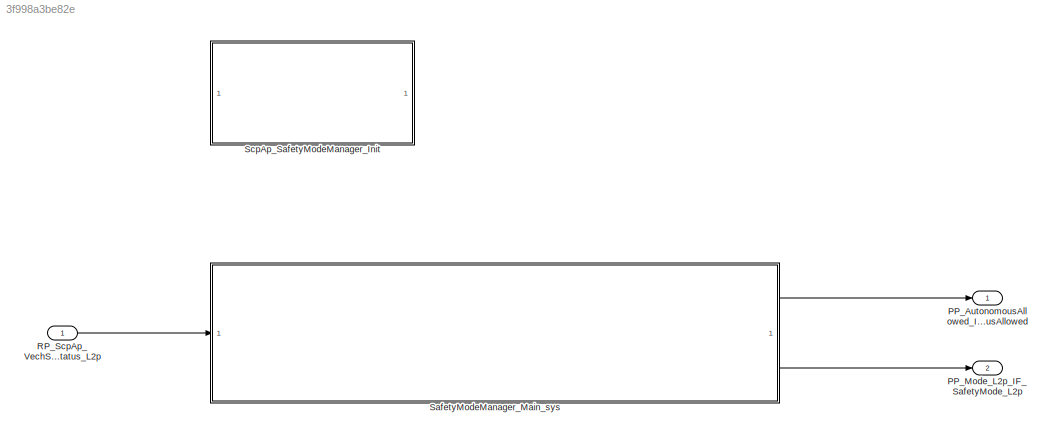
MODEL slx_3f998a3be82e
KIND model
CONFIG AbsTol = auto
CONFIG EnableMultiTasking = off
CONFIG FixedStep = 0.02
CONFIG MaxStep = auto
CONFIG MinStep = auto
CONFIG RelTol = 1e-3
CONFIG SampleTimeConstraint = Unconstrained
CONFIG SolverName = FixedStepDiscrete
CONFIG StartTime = 0.0
CONFIG StopTime = 10.0
BLOCK [Outport] PP_AutonomousAllowed_IF_AutonomousAllowed
  OutDataTypeStr = boolean
  PortDimensions = 1
  SamplingMode = Sample based
  SignalType = real
BLOCK [Outport] PP_Mode_L2p_IF_SafetyMode_L2p
  OutDataTypeStr = Enum: SafetyMode_L2p_IDT
  Port = 2
  PortDimensions = 1
  SamplingMode = Sample based
  SignalType = real
BLOCK [Inport] RP_ScpAp_VechSafetyStatus_L2p_IF_VechSafetyStatus_L2p
  OutDataTypeStr = Enum: VechSafetyStatus_L2p_IDT
  PortDimensions = 1
  SamplingMode = Sample based
  SignalType = real
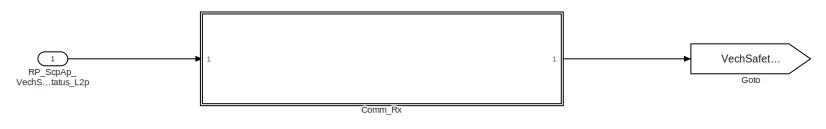
[diagram: SafetyModeManager_Main_sys - part 1/3, middle left region]
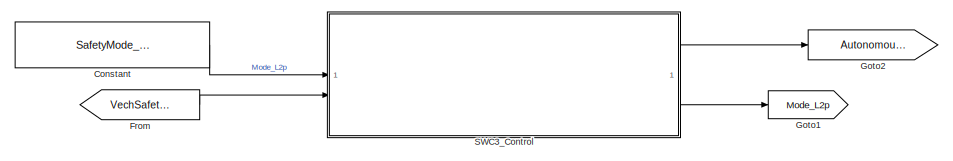
[diagram: SafetyModeManager_Main_sys - part 2/3, center side, full height]
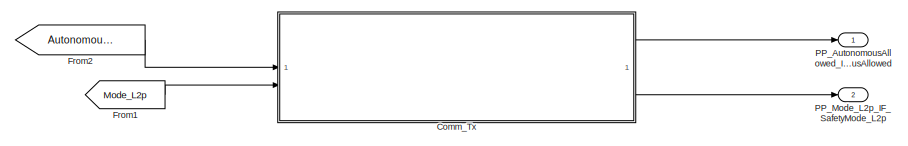
[diagram: SafetyModeManager_Main_sys - part 3/3, middle right region]
BLOCK [SubSystem] SafetyModeManager_Main_sys
  SystemSampleTime = 0.02
  TreatAsAtomicUnit = on
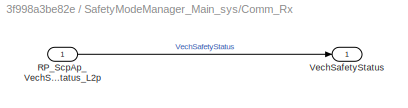
BLOCK [SubSystem] SafetyModeManager_Main_sys/Comm_Rx
  TreatAsAtomicUnit = on
BLOCK [Inport] SafetyModeManager_Main_sys/Comm_Rx/RP_ScpAp_VechSafetyStatus_L2p_IF_VechSafetyStatus_L2p
  OutDataTypeStr = Enum: VechSafetyStatus_L2p_IDT
BLOCK [Outport] SafetyModeManager_Main_sys/Comm_Rx/VechSafetyStatus
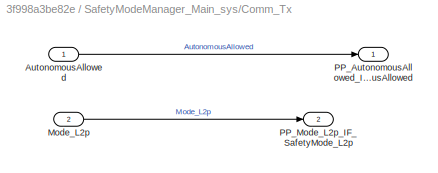
BLOCK [SubSystem] SafetyModeManager_Main_sys/Comm_Tx
  TreatAsAtomicUnit = on
BLOCK [Inport] SafetyModeManager_Main_sys/Comm_Tx/AutonomousAllowed
  OutDataTypeStr = boolean
BLOCK [Inport] SafetyModeManager_Main_sys/Comm_Tx/Mode_L2p
  Port = 2
BLOCK [Outport] SafetyModeManager_Main_sys/Comm_Tx/PP_AutonomousAllowed_IF_AutonomousAllowed
  OutDataTypeStr = boolean
BLOCK [Outport] SafetyModeManager_Main_sys/Comm_Tx/PP_Mode_L2p_IF_SafetyMode_L2p
  Port = 2
BLOCK [Constant] SafetyModeManager_Main_sys/Constant
  Value = SafetyMode_L2p_IDT.AUTONOMOUS
BLOCK [From] SafetyModeManager_Main_sys/From
  GotoTag = VechSafetyStatus
BLOCK [From] SafetyModeManager_Main_sys/From1
  GotoTag = Mode_L2p
BLOCK [From] SafetyModeManager_Main_sys/From2
  GotoTag = AutonomousAllowed
BLOCK [Goto] SafetyModeManager_Main_sys/Goto
  GotoTag = VechSafetyStatus
BLOCK [Goto] SafetyModeManager_Main_sys/Goto1
  GotoTag = Mode_L2p
BLOCK [Goto] SafetyModeManager_Main_sys/Goto2
  GotoTag = AutonomousAllowed
BLOCK [Outport] SafetyModeManager_Main_sys/PP_AutonomousAllowed_IF_AutonomousAllowed
BLOCK [Outport] SafetyModeManager_Main_sys/PP_Mode_L2p_IF_SafetyMode_L2p
  Port = 2
BLOCK [Inport] SafetyModeManager_Main_sys/RP_ScpAp_VechSafetyStatus_L2p_IF_VechSafetyStatus_L2p
  OutDataTypeStr = Enum: VechSafetyStatus_L2p_IDT
  PortDimensions = 1
  SamplingMode = Sample based
  SignalType = real
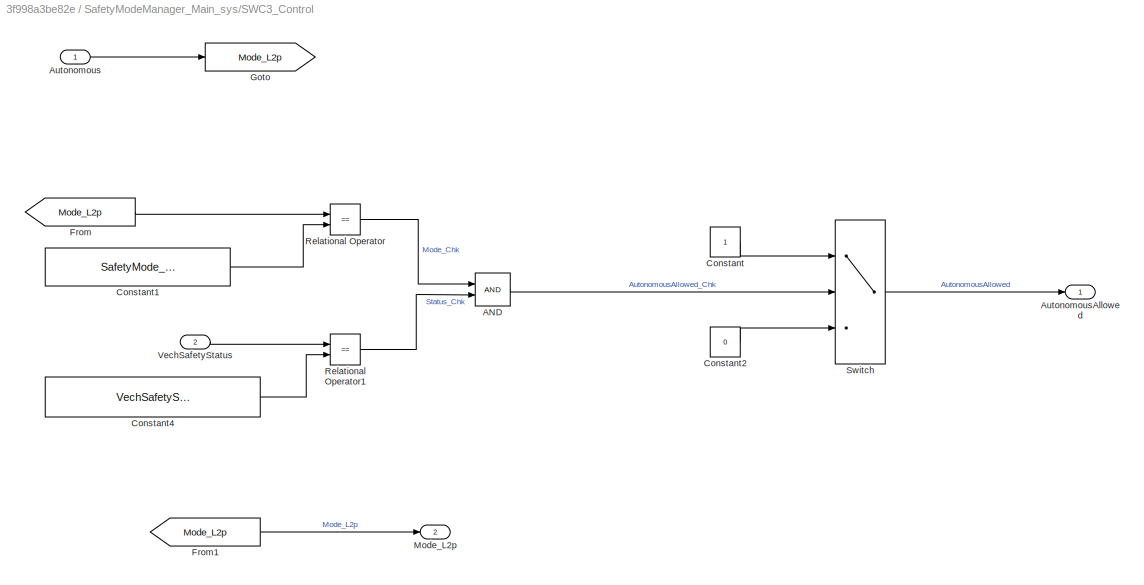
BLOCK [SubSystem] SafetyModeManager_Main_sys/SWC3_Control
  TreatAsAtomicUnit = on
BLOCK [Logic] SafetyModeManager_Main_sys/SWC3_Control/AND
  AllPortsSameDT = off
  OutDataTypeStr = boolean
BLOCK [Inport] SafetyModeManager_Main_sys/SWC3_Control/Autonomous
BLOCK [Outport] SafetyModeManager_Main_sys/SWC3_Control/AutonomousAllowed
  OutDataTypeStr = boolean
BLOCK [Constant] SafetyModeManager_Main_sys/SWC3_Control/Constant
  OutDataTypeStr = boolean
BLOCK [Constant] SafetyModeManager_Main_sys/SWC3_Control/Constant1
  OutDataTypeStr = Enum: SafetyMode_L2p_IDT
  Value = SafetyMode_L2p_IDT.AUTONOMOUS
BLOCK [Constant] SafetyModeManager_Main_sys/SWC3_Control/Constant2
  OutDataTypeStr = boolean
  Value = 0
BLOCK [Constant] SafetyModeManager_Main_sys/SWC3_Control/Constant4
  OutDataTypeStr = Enum: VechSafetyStatus_L2p_IDT
  Value = VechSafetyStatus_L2p_IDT.NORMAL
BLOCK [From] SafetyModeManager_Main_sys/SWC3_Control/From
  GotoTag = Mode_L2p
BLOCK [From] SafetyModeManager_Main_sys/SWC3_Control/From1
  GotoTag = Mode_L2p
BLOCK [Goto] SafetyModeManager_Main_sys/SWC3_Control/Goto
  GotoTag = Mode_L2p
BLOCK [Outport] SafetyModeManager_Main_sys/SWC3_Control/Mode_L2p
  Port = 2
BLOCK [RelationalOperator] SafetyModeManager_Main_sys/SWC3_Control/Relational Operator
  InputSameDT = off
  Operator = ==
  OutDataTypeStr = boolean
  RndMeth = Simplest
BLOCK [RelationalOperator] SafetyModeManager_Main_sys/SWC3_Control/Relational Operator1
  InputSameDT = off
  Operator = ==
  OutDataTypeStr = boolean
  RndMeth = Simplest
BLOCK [Switch] SafetyModeManager_Main_sys/SWC3_Control/Switch
  Criteria = u2 > Threshold
  InputSameDT = off
  SaturateOnIntegerOverflow = off
BLOCK [Inport] SafetyModeManager_Main_sys/SWC3_Control/VechSafetyStatus
  OutDataTypeStr = Enum: VechSafetyStatus_L2p_IDT
  Port = 2
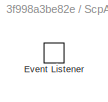
BLOCK [SubSystem] ScpAp_SafetyModeManager_Init
BLOCK [EventListener] ScpAp_SafetyModeManager_Init/Event Listener
  EventName = reset
LINE RP_ScpAp_VechSafetyStatus_L2p_IF_VechSafetyStatus_L2p:1 -> SafetyModeManager_Main_sys:1
LINE SafetyModeManager_Main_sys/Comm_Rx/RP_ScpAp_VechSafetyStatus_L2p_IF_VechSafetyStatus_L2p:1 -> SafetyModeManager_Main_sys/Comm_Rx/VechSafetyStatus:1
LINE SafetyModeManager_Main_sys/Comm_Rx:1 -> SafetyModeManager_Main_sys/Goto:1
LINE SafetyModeManager_Main_sys/Comm_Tx/AutonomousAllowed:1 -> SafetyModeManager_Main_sys/Comm_Tx/PP_AutonomousAllowed_IF_AutonomousAllowed:1
LINE SafetyModeManager_Main_sys/Comm_Tx/Mode_L2p:1 -> SafetyModeManager_Main_sys/Comm_Tx/PP_Mode_L2p_IF_SafetyMode_L2p:1
LINE SafetyModeManager_Main_sys/Comm_Tx:1 -> SafetyModeManager_Main_sys/PP_AutonomousAllowed_IF_AutonomousAllowed:1
LINE SafetyModeManager_Main_sys/Comm_Tx:2 -> SafetyModeManager_Main_sys/PP_Mode_L2p_IF_SafetyMode_L2p:1
LINE SafetyModeManager_Main_sys/Constant:1 -> SafetyModeManager_Main_sys/SWC3_Control:1
LINE SafetyModeManager_Main_sys/From1:1 -> SafetyModeManager_Main_sys/Comm_Tx:2
LINE SafetyModeManager_Main_sys/From2:1 -> SafetyModeManager_Main_sys/Comm_Tx:1
LINE SafetyModeManager_Main_sys/From:1 -> SafetyModeManager_Main_sys/SWC3_Control:2
LINE SafetyModeManager_Main_sys/RP_ScpAp_VechSafetyStatus_L2p_IF_VechSafetyStatus_L2p:1 -> SafetyModeManager_Main_sys/Comm_Rx:1
LINE SafetyModeManager_Main_sys/SWC3_Control/AND:1 -> SafetyModeManager_Main_sys/SWC3_Control/Switch:2
LINE SafetyModeManager_Main_sys/SWC3_Control/Autonomous:1 -> SafetyModeManager_Main_sys/SWC3_Control/Goto:1
LINE SafetyModeManager_Main_sys/SWC3_Control/Constant1:1 -> SafetyModeManager_Main_sys/SWC3_Control/Relational Operator:2
LINE SafetyModeManager_Main_sys/SWC3_Control/Constant2:1 -> SafetyModeManager_Main_sys/SWC3_Control/Switch:3
LINE SafetyModeManager_Main_sys/SWC3_Control/Constant4:1 -> SafetyModeManager_Main_sys/SWC3_Control/Relational Operator1:2
LINE SafetyModeManager_Main_sys/SWC3_Control/Constant:1 -> SafetyModeManager_Main_sys/SWC3_Control/Switch:1
LINE SafetyModeManager_Main_sys/SWC3_Control/From1:1 -> SafetyModeManager_Main_sys/SWC3_Control/Mode_L2p:1
LINE SafetyModeManager_Main_sys/SWC3_Control/From:1 -> SafetyModeManager_Main_sys/SWC3_Control/Relational Operator:1
LINE SafetyModeManager_Main_sys/SWC3_Control/Relational Operator1:1 -> SafetyModeManager_Main_sys/SWC3_Control/AND:2
LINE SafetyModeManager_Main_sys/SWC3_Control/Relational Operator:1 -> SafetyModeManager_Main_sys/SWC3_Control/AND:1
LINE SafetyModeManager_Main_sys/SWC3_Control/Switch:1 -> SafetyModeManager_Main_sys/SWC3_Control/AutonomousAllowed:1
LINE SafetyModeManager_Main_sys/SWC3_Control/VechSafetyStatus:1 -> SafetyModeManager_Main_sys/SWC3_Control/Relational Operator1:1
LINE SafetyModeManager_Main_sys/SWC3_Control:1 -> SafetyModeManager_Main_sys/Goto2:1
LINE SafetyModeManager_Main_sys/SWC3_Control:2 -> SafetyModeManager_Main_sys/Goto1:1
LINE SafetyModeManager_Main_sys:1 -> PP_AutonomousAllowed_IF_AutonomousAllowed:1
LINE SafetyModeManager_Main_sys:2 -> PP_Mode_L2p_IF_SafetyMode_L2p:1
